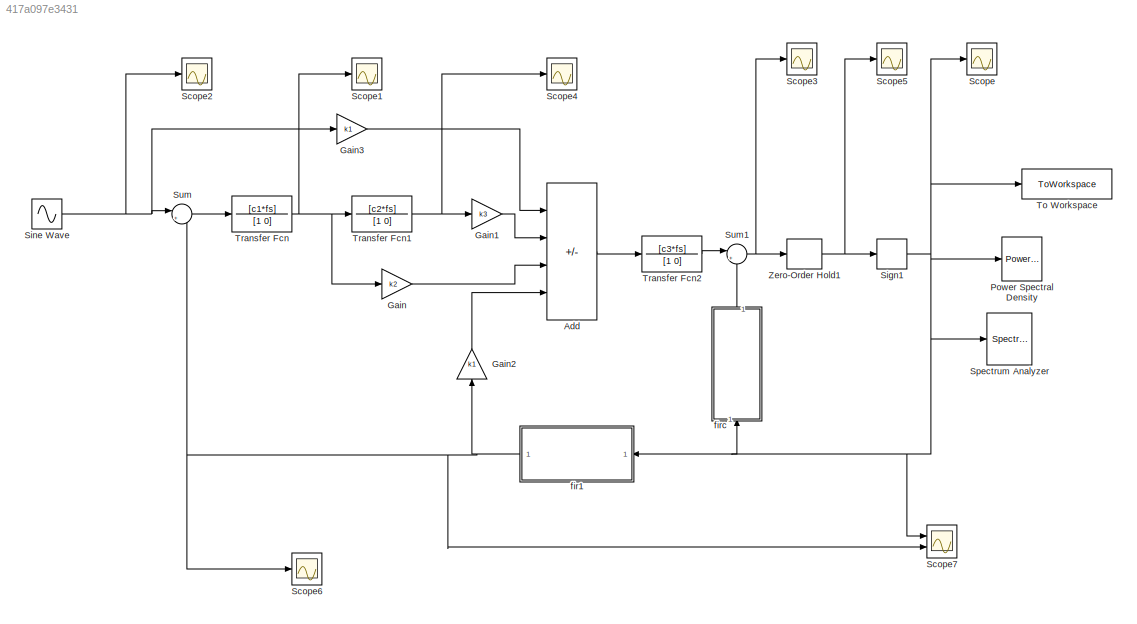
MODEL slx_417a097e3431
KIND model
CONFIG AbsTol = auto
CONFIG EnableMultiTasking = off
CONFIG FixedStep = auto
CONFIG MaxStep = auto
CONFIG MinStep = auto
CONFIG RelTol = 1e-3
CONFIG SampleTimeConstraint = Unconstrained
CONFIG SolverName = VariableStepAuto
CONFIG StartTime = 0.0
CONFIG StopTime = time
BLOCK [Sum] Add
  IconShape = rectangular
  Inputs = +++-
  Ports = [4, 1]
BLOCK [Gain] Gain
  Gain = k2
BLOCK [Gain] Gain1
  Gain = k3
BLOCK [Gain] Gain2
  Gain = k1
  NameLocation = right
BLOCK [Gain] Gain3
  Commented = on
  Gain = k1
BLOCK [Reference] Power Spectral Density  REF=SDtoolbox/Power Spectral Density
  Commented = on
  Ports = [1]
  SourceBlock = SDtoolbox/Power Spectral Density
BLOCK [Scope] Scope
  Floating = off
  NumInputPorts = 1
  Ports = [1]
  ScopeSpecificationString = Simulink.scopes.TimeScopeBlockCfg('CurrentConfiguration', extmgr.ConfigurationSet(extmgr.Configuration('Core','General UI',true),extmgr.Configuration('Core','Source UI',true),extmgr.Configuration('Sources','WiredSimulink',true),extmgr.Configuration('Visuals','Time Domain',true,'SerializedDisplays',{struct('MinYLimReal','-1.25','MaxYLimReal','1.25','YLabelReal','','MinYLimMag','0.00000','MaxYLimMag...<+1409ch>
BLOCK [Scope] Scope1
  Floating = off
  NumInputPorts = 1
  Ports = [1]
  ScopeSpecificationString = Simulink.scopes.TimeScopeBlockCfg('CurrentConfiguration', extmgr.ConfigurationSet(extmgr.Configuration('Core','General UI',true),extmgr.Configuration('Core','Source UI',true),extmgr.Configuration('Sources','WiredSimulink',true,'DataLoggingVariableName','ScopeData1'),extmgr.Configuration('Visuals','Time Domain',true,'SerializedDisplays',{struct('MinYLimReal','-6.82828','MaxYLimReal','3.80492','YLab...<+1473ch>
BLOCK [Scope] Scope2
  Floating = off
  NumInputPorts = 1
  Ports = [1]
  ScopeSpecificationString = Simulink.scopes.TimeScopeBlockCfg('CurrentConfiguration', extmgr.ConfigurationSet(extmgr.Configuration('Core','General UI',true),extmgr.Configuration('Core','Source UI',true),extmgr.Configuration('Sources','WiredSimulink',true,'DataLoggingVariableName','ScopeData2'),extmgr.Configuration('Visuals','Time Domain',true,'SerializedDisplays',{struct('MinYLimReal','-0.125','MaxYLimReal','0.125','YLabelRe...<+1491ch>
BLOCK [Scope] Scope3
  Floating = off
  NumInputPorts = 1
  Ports = [1]
  ScopeSpecificationString = Simulink.scopes.TimeScopeBlockCfg('CurrentConfiguration', extmgr.ConfigurationSet(extmgr.Configuration('Core','General UI',true),extmgr.Configuration('Core','Source UI',true),extmgr.Configuration('Sources','WiredSimulink',true,'DataLoggingVariableName','ScopeData3'),extmgr.Configuration('Visuals','Time Domain',true,'SerializedDisplays',{struct('MinYLimReal','-4.05932','MaxYLimReal','4.23945','YLab...<+1467ch>
BLOCK [Scope] Scope4
  Floating = off
  NumInputPorts = 1
  Ports = [1]
  ScopeSpecificationString = Simulink.scopes.TimeScopeBlockCfg('CurrentConfiguration', extmgr.ConfigurationSet(extmgr.Configuration('Core','General UI',true),extmgr.Configuration('Core','Source UI',true),extmgr.Configuration('Sources','WiredSimulink',true,'DataLoggingVariableName','ScopeData4'),extmgr.Configuration('Visuals','Time Domain',true,'SerializedDisplays',{struct('MinYLimReal','-2.3366','MaxYLimReal','2.43169','YLabe...<+1470ch>
BLOCK [Scope] Scope5
  Floating = off
  NumInputPorts = 1
  Ports = [1]
  ScopeSpecificationString = Simulink.scopes.TimeScopeBlockCfg('CurrentConfiguration', extmgr.ConfigurationSet(extmgr.Configuration('Core','General UI',true),extmgr.Configuration('Core','Source UI',true),extmgr.Configuration('Sources','WiredSimulink',true,'DataLoggingVariableName','ScopeData5'),extmgr.Configuration('Visuals','Time Domain',true,'SerializedDisplays',{struct('MinYLimReal','-1.20793','MaxYLimReal','1.2083','YLabe...<+1448ch>
BLOCK [Scope] Scope6
  Floating = off
  NumInputPorts = 1
  Ports = [1]
  ScopeSpecificationString = Simulink.scopes.TimeScopeBlockCfg('CurrentConfiguration', extmgr.ConfigurationSet(extmgr.Configuration('Core','General UI',true),extmgr.Configuration('Core','Source UI',true),extmgr.Configuration('Sources','WiredSimulink',true,'DataLoggingVariableName','ScopeData1'),extmgr.Configuration('Visuals','Time Domain',true,'SerializedDisplays',{struct('MinYLimReal','-0.41667','MaxYLimReal','0.41667','YLab...<+1498ch>
BLOCK [Scope] Scope7
  Floating = off
  NumInputPorts = 2
  Ports = [2]
  ScopeSpecificationString = Simulink.scopes.TimeScopeBlockCfg('CurrentConfiguration', extmgr.ConfigurationSet(extmgr.Configuration('Core','General UI',true),extmgr.Configuration('Core','Source UI',true),extmgr.Configuration('Sources','WiredSimulink',true,'DataLoggingVariableName','ScopeData2'),extmgr.Configuration('Visuals','Time Domain',true,'SerializedDisplays',{struct('MinYLimReal','-1.25','MaxYLimReal','1.25','YLabelReal...<+1492ch>
BLOCK [Signum] Sign1
BLOCK [Sin] Sine Wave
  Amplitude = 0.8
  Frequency = fin*2*pi
  Ports = [0, 1]
  SampleTime = 0
BLOCK [SpectrumAnalyzer] Spectrum Analyzer
  Ports = [1]
  ScopeSpecificationString = spbscopes.SpectrumAnalyzerBlockCfg('CurrentConfiguration', extmgr.ConfigurationSet(extmgr.Configuration('Core','General UI',true),extmgr.Configuration('Core','Source UI',true),extmgr.Configuration('Sources','WiredSimulink',true),extmgr.Configuration('Sources','SimulinkEvent',false),extmgr.Configuration('Sources','Simulink',false),extmgr.Configuration('Sources','SPTool',false),extmgr.Configuration(...<+4086ch>
BLOCK [Sum] Sum
  Inputs = |+-
  Ports = [2, 1]
BLOCK [Sum] Sum1
  Inputs = |+-
  Ports = [2, 1]
BLOCK [ToWorkspace] To Workspace
  FixptAsFi = on
  MaxDataPoints = inf
  Ports = [1]
  SampleTime = 1/fs
  VariableName = v
BLOCK [TransferFcn] Transfer Fcn
  Denominator = [1 0]
  Numerator = [c1*fs]
BLOCK [TransferFcn] Transfer Fcn1
  Denominator = [1 0]
  Numerator = [c2*fs]
BLOCK [TransferFcn] Transfer Fcn2
  Denominator = [1 0]
  Numerator = [c3*fs]
BLOCK [ZeroOrderHold] Zero-Order Hold1
  SampleTime = 1/fs
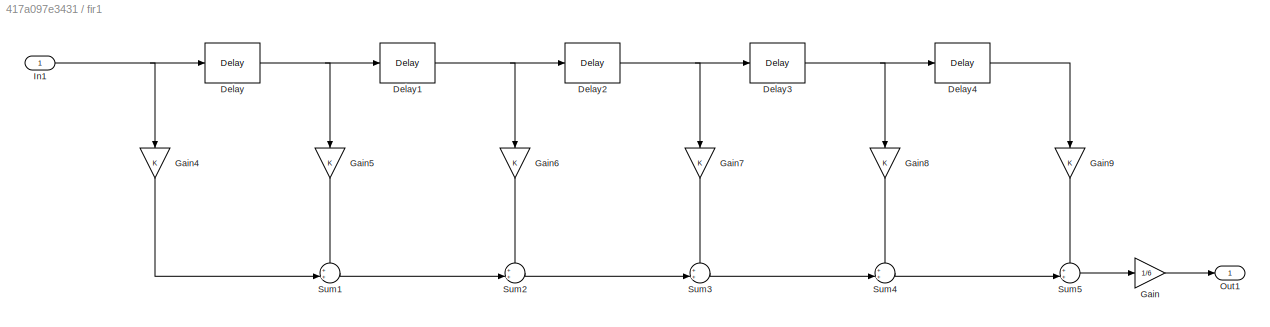
BLOCK [SubSystem] fir1
  NameLocation = top
  Ports = [1, 1]
  RequestExecContextInheritance = off
BLOCK [Delay] fir1/Delay
  DelayLength = 1
  InputPortMap = u0
  InputProcessing = Columns as channels (frame based)
  Ports = [1, 1]
  SampleTime = Ts
BLOCK [Delay] fir1/Delay1
  DelayLength = 1
  InputPortMap = u0
  InputProcessing = Columns as channels (frame based)
  Ports = [1, 1]
  SampleTime = Ts
BLOCK [Delay] fir1/Delay2
  DelayLength = 1
  InputPortMap = u0
  InputProcessing = Columns as channels (frame based)
  Ports = [1, 1]
  SampleTime = Ts
BLOCK [Delay] fir1/Delay3
  DelayLength = 1
  InputPortMap = u0
  InputProcessing = Columns as channels (frame based)
  Ports = [1, 1]
  SampleTime = Ts
BLOCK [Delay] fir1/Delay4
  DelayLength = 1
  InputPortMap = u0
  InputProcessing = Columns as channels (frame based)
  Ports = [1, 1]
  SampleTime = Ts
BLOCK [Gain] fir1/Gain
  Gain = 1/6
BLOCK [Gain] fir1/Gain4
  NameLocation = left
BLOCK [Gain] fir1/Gain5
  NameLocation = left
BLOCK [Gain] fir1/Gain6
  NameLocation = left
BLOCK [Gain] fir1/Gain7
  NameLocation = left
BLOCK [Gain] fir1/Gain8
  NameLocation = left
BLOCK [Gain] fir1/Gain9
  NameLocation = left
BLOCK [Inport] fir1/In1
BLOCK [Outport] fir1/Out1
BLOCK [Sum] fir1/Sum1
  Inputs = ++|
  Ports = [2, 1]
BLOCK [Sum] fir1/Sum2
  Inputs = ++|
  Ports = [2, 1]
BLOCK [Sum] fir1/Sum3
  Inputs = ++|
  Ports = [2, 1]
BLOCK [Sum] fir1/Sum4
  Inputs = ++|
  Ports = [2, 1]
BLOCK [Sum] fir1/Sum5
  Inputs = ++|
  Ports = [2, 1]
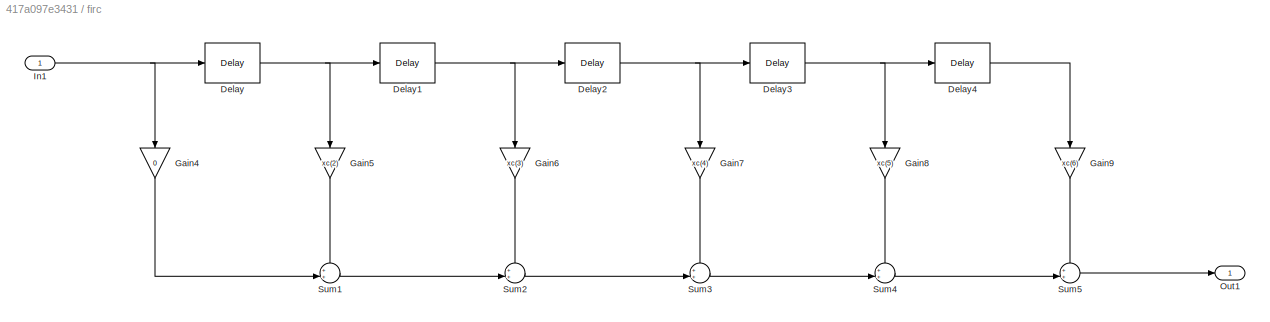
BLOCK [SubSystem] firc
  NameLocation = right
  Ports = [1, 1]
  RequestExecContextInheritance = off
BLOCK [Delay] firc/Delay
  DelayLength = 1
  InputPortMap = u0
  InputProcessing = Columns as channels (frame based)
  Ports = [1, 1]
  SampleTime = Ts
BLOCK [Delay] firc/Delay1
  DelayLength = 1
  InputPortMap = u0
  InputProcessing = Columns as channels (frame based)
  Ports = [1, 1]
  SampleTime = Ts
BLOCK [Delay] firc/Delay2
  DelayLength = 1
  InputPortMap = u0
  InputProcessing = Columns as channels (frame based)
  Ports = [1, 1]
  SampleTime = Ts
BLOCK [Delay] firc/Delay3
  DelayLength = 1
  InputPortMap = u0
  InputProcessing = Columns as channels (frame based)
  Ports = [1, 1]
  SampleTime = Ts
BLOCK [Delay] firc/Delay4
  DelayLength = 1
  InputPortMap = u0
  InputProcessing = Columns as channels (frame based)
  Ports = [1, 1]
  SampleTime = Ts
BLOCK [Gain] firc/Gain4
  Gain = 0
  NameLocation = left
BLOCK [Gain] firc/Gain5
  Gain = xc(2)
  NameLocation = left
BLOCK [Gain] firc/Gain6
  Gain = xc(3)
  NameLocation = left
BLOCK [Gain] firc/Gain7
  Gain = xc(4)
  NameLocation = left
BLOCK [Gain] firc/Gain8
  Gain = xc(5)
  NameLocation = left
BLOCK [Gain] firc/Gain9
  Gain = xc(6)
  NameLocation = left
BLOCK [Inport] firc/In1
BLOCK [Outport] firc/Out1
BLOCK [Sum] firc/Sum1
  Inputs = ++|
  Ports = [2, 1]
BLOCK [Sum] firc/Sum2
  Inputs = ++|
  Ports = [2, 1]
BLOCK [Sum] firc/Sum3
  Inputs = ++|
  Ports = [2, 1]
BLOCK [Sum] firc/Sum4
  Inputs = ++|
  Ports = [2, 1]
BLOCK [Sum] firc/Sum5
  Inputs = ++|
  Ports = [2, 1]
LINE Add:1 -> Transfer Fcn2:1
LINE Gain1:1 -> Add:2
LINE Gain2:1 -> Add:4
LINE Gain3:1 -> Add:1
LINE Gain:1 -> Add:3
NET Sign1:1 -> Power Spectral Density:1, Scope7:1, Scope:1, Spectrum Analyzer:1, To Workspace:1, fir1:1, firc:1
NET Sine Wave:1 -> Gain3:1, Scope2:1, Sum:1
NET Sum1:1 -> Scope3:1, Zero-Order Hold1:1
LINE Sum:1 -> Transfer Fcn:1
NET Transfer Fcn1:1 -> Gain1:1, Scope4:1
LINE Transfer Fcn2:1 -> Sum1:1
NET Transfer Fcn:1 -> Gain:1, Scope1:1, Transfer Fcn1:1
NET Zero-Order Hold1:1 -> Scope5:1, Sign1:1
NET fir1/Delay1:1 -> fir1/Delay2:1, fir1/Gain6:1
NET fir1/Delay2:1 -> fir1/Delay3:1, fir1/Gain7:1
NET fir1/Delay3:1 -> fir1/Delay4:1, fir1/Gain8:1
LINE fir1/Delay4:1 -> fir1/Gain9:1
NET fir1/Delay:1 -> fir1/Delay1:1, fir1/Gain5:1
LINE fir1/Gain4:1 -> fir1/Sum1:2
LINE fir1/Gain5:1 -> fir1/Sum1:1
LINE fir1/Gain6:1 -> fir1/Sum2:1
LINE fir1/Gain7:1 -> fir1/Sum3:1
LINE fir1/Gain8:1 -> fir1/Sum4:1
LINE fir1/Gain9:1 -> fir1/Sum5:1
LINE fir1/Gain:1 -> fir1/Out1:1
NET fir1/In1:1 -> fir1/Delay:1, fir1/Gain4:1
LINE fir1/Sum1:1 -> fir1/Sum2:2
LINE fir1/Sum2:1 -> fir1/Sum3:2
LINE fir1/Sum3:1 -> fir1/Sum4:2
LINE fir1/Sum4:1 -> fir1/Sum5:2
LINE fir1/Sum5:1 -> fir1/Gain:1
NET fir1:1 -> Gain2:1, Scope6:1, Scope7:2, Sum:2
NET firc/Delay1:1 -> firc/Delay2:1, firc/Gain6:1
NET firc/Delay2:1 -> firc/Delay3:1, firc/Gain7:1
NET firc/Delay3:1 -> firc/Delay4:1, firc/Gain8:1
LINE firc/Delay4:1 -> firc/Gain9:1
NET firc/Delay:1 -> firc/Delay1:1, firc/Gain5:1
LINE firc/Gain4:1 -> firc/Sum1:2
LINE firc/Gain5:1 -> firc/Sum1:1
LINE firc/Gain6:1 -> firc/Sum2:1
LINE firc/Gain7:1 -> firc/Sum3:1
LINE firc/Gain8:1 -> firc/Sum4:1
LINE firc/Gain9:1 -> firc/Sum5:1
NET firc/In1:1 -> firc/Delay:1, firc/Gain4:1
LINE firc/Sum1:1 -> firc/Sum2:2
LINE firc/Sum2:1 -> firc/Sum3:2
LINE firc/Sum3:1 -> firc/Sum4:2
LINE firc/Sum4:1 -> firc/Sum5:2
LINE firc/Sum5:1 -> firc/Out1:1
LINE firc:1 -> Sum1:2
note: NET lines group one-source signal fan-out (src -> all destinations, sorted); 1:1 wires keep LINE
